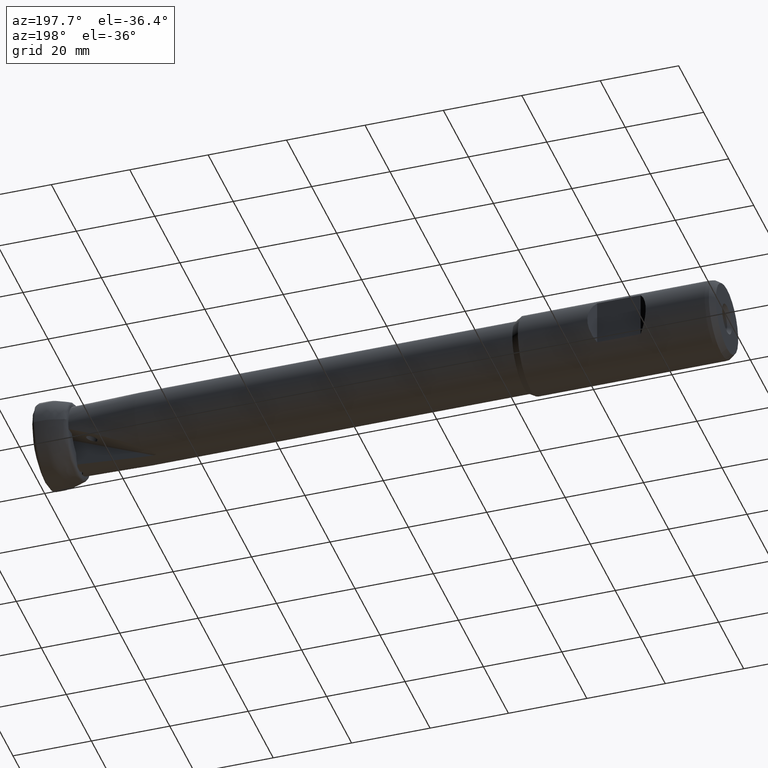
[diagram: clean part render]
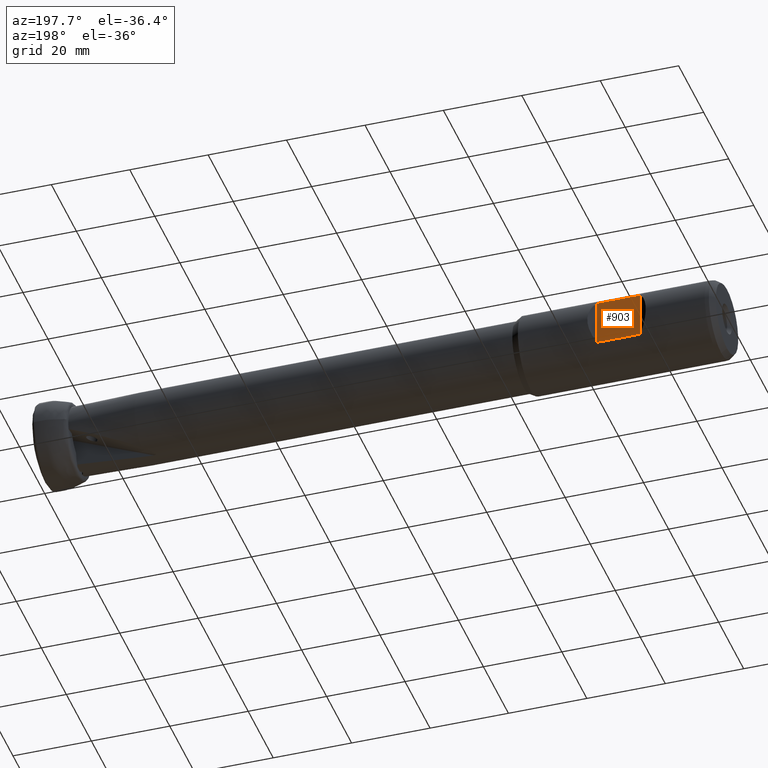
[diagram: same view with one face highlighted and labeled with its STEP entity id]
A machine part, auxiliary view. The second image highlights one B-rep face of the part: STEP entity #903.
In plain terms, the highlighted planar face has unit normal (0, -1, -0).
Its self-contained STEP definition (entity closure, byte-faithful):
#87 = CARTESIAN_POINT ( 'NONE',  ( -154.6000000000000200, 8.100000000000015600, -15.00000000000000000 ) ) ;
#147 = CARTESIAN_POINT ( 'NONE',  ( -114.0500000000000100, 8.100000000000015600, 5.864298764558278700 ) ) ;
#160 = VERTEX_POINT ( 'NONE', #485 ) ;
#259 = LINE ( 'NONE', #147, #1324 ) ;
#297 = CARTESIAN_POINT ( 'NONE',  ( -114.0500000000000100, 8.100000000000015600, -5.864298764558278700 ) ) ;
#352 = EDGE_CURVE ( 'NONE', #2365, #1698, #816, .T. ) ;
#366 = DIRECTION ( 'NONE',  ( -1.000000000000000000, -0.0000000000000000000, -0.0000000000000000000 ) ) ;
#485 = CARTESIAN_POINT ( 'NONE',  ( -154.6000000000000200, 8.100000000000015600, 5.864298764558278700 ) ) ;
#541 = VECTOR ( 'NONE', #1048, 1000.000000000000000 ) ;
#545 = EDGE_CURVE ( 'NONE', #2365, #160, #2392, .T. ) ;
#560 = ORIENTED_EDGE ( 'NONE', *, *, #2576, .F. ) ;
#678 = PLANE ( 'NONE',  #1775 ) ;
#816 = LINE ( 'NONE', #297, #1389 ) ;
#849 = FACE_OUTER_BOUND ( 'NONE', #1764, .T. ) ;
#903 = ADVANCED_FACE ( 'NONE', ( #849 ), #678, .F. ) ;
#1048 = DIRECTION ( 'NONE',  ( -0.0000000000000000000, -0.0000000000000000000, 1.000000000000000000 ) ) ;
#1105 = DIRECTION ( 'NONE',  ( 0.0000000000000000000, -1.000000000000000000, -0.0000000000000000000 ) ) ;
#1214 = CARTESIAN_POINT ( 'NONE',  ( -154.6000000000000200, 8.100000000000015600, -5.864298764558278700 ) ) ;
#1282 = VERTEX_POINT ( 'NONE', #1292 ) ;
#1292 = CARTESIAN_POINT ( 'NONE',  ( -143.5000000000000300, 8.100000000000015600, 5.864298764558281400 ) ) ;
#1324 = VECTOR ( 'NONE', #366, 1000.000000000000000 ) ;
#1389 = VECTOR ( 'NONE', #2409, 1000.000000000000000 ) ;
#1675 = LINE ( 'NONE', #1690, #541 ) ;
#1690 = CARTESIAN_POINT ( 'NONE',  ( -143.5000000000000300, 8.100000000000015600, -15.00000000000000000 ) ) ;
#1698 = VERTEX_POINT ( 'NONE', #1814 ) ;
#1764 = EDGE_LOOP ( 'NONE', ( #1980, #560, #2466, #2525 ) ) ;
#1775 = AXIS2_PLACEMENT_3D ( 'NONE', #2382, #1105, #2598 ) ;
#1814 = CARTESIAN_POINT ( 'NONE',  ( -143.5000000000000300, 8.100000000000015600, -5.864298764558281400 ) ) ;
#1825 = VECTOR ( 'NONE', #2730, 1000.000000000000000 ) ;
#1980 = ORIENTED_EDGE ( 'NONE', *, *, #2330, .F. ) ;
#2330 = EDGE_CURVE ( 'NONE', #1282, #160, #259, .T. ) ;
#2365 = VERTEX_POINT ( 'NONE', #1214 ) ;
#2382 = CARTESIAN_POINT ( 'NONE',  ( -143.5000000000000300, 8.100000000000015600, -15.00000000000000000 ) ) ;
#2392 = LINE ( 'NONE', #87, #1825 ) ;
#2409 = DIRECTION ( 'NONE',  ( 1.000000000000000000, 0.0000000000000000000, 0.0000000000000000000 ) ) ;
#2466 = ORIENTED_EDGE ( 'NONE', *, *, #352, .F. ) ;
#2525 = ORIENTED_EDGE ( 'NONE', *, *, #545, .T. ) ;
#2576 = EDGE_CURVE ( 'NONE', #1698, #1282, #1675, .T. ) ;
#2598 = DIRECTION ( 'NONE',  ( 0.0000000000000000000, 0.0000000000000000000, -1.000000000000000000 ) ) ;
#2730 = DIRECTION ( 'NONE',  ( -0.0000000000000000000, -0.0000000000000000000, 1.000000000000000000 ) ) ;